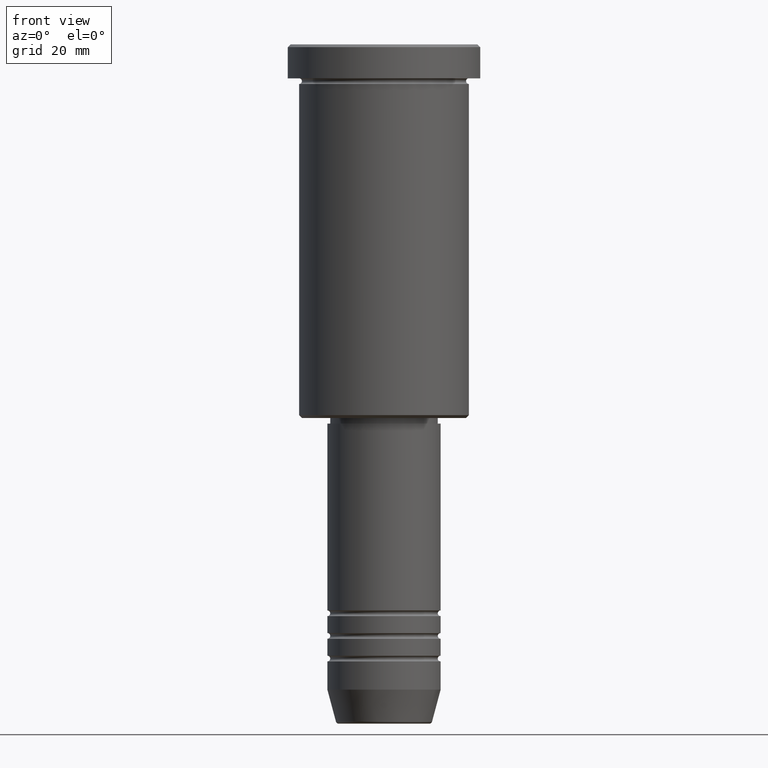
[diagram: clean part render]
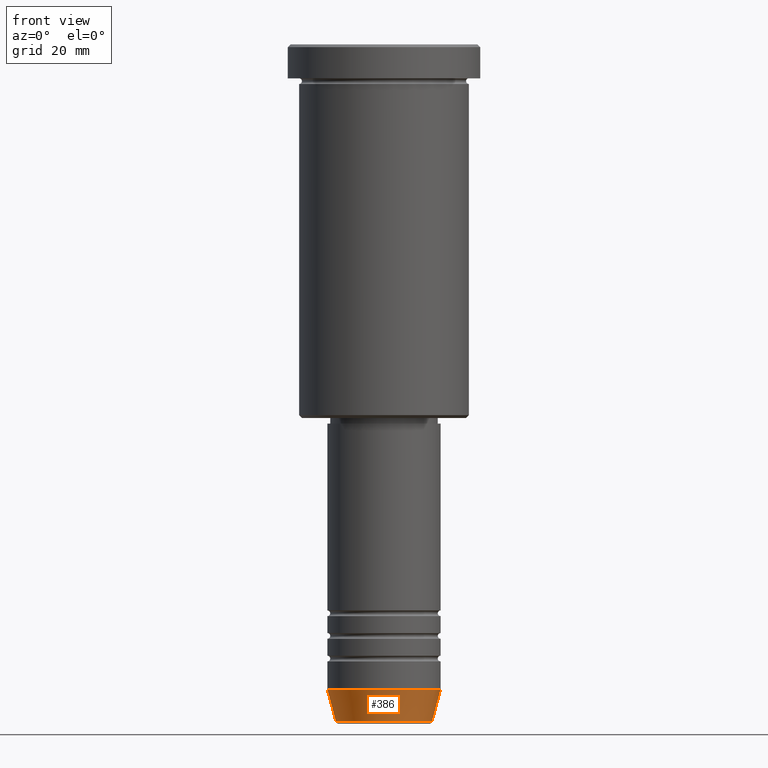
[diagram: same view with one face highlighted and labeled with its STEP entity id]
A machine part, front view. The second image highlights one B-rep face of the part: STEP entity #386.
In plain terms, the highlighted conical surface has half-angle 15 deg.
Its self-contained STEP definition (entity closure, byte-faithful):
#25 = CARTESIAN_POINT ( 'NONE',  ( 10.00000000000000178, 0.000000000000000000, -113.9999999999999858 ) ) ;
#26 = CIRCLE ( 'NONE', #751, 10.00000000000000178 ) ;
#50 = VERTEX_POINT ( 'NONE', #158 ) ;
#103 = EDGE_CURVE ( 'NONE', #493, #299, #26, .T. ) ;
#109 = CARTESIAN_POINT ( 'NONE',  ( 0.000000000000000000, 0.000000000000000000, -113.9999999999999858 ) ) ;
#145 = CIRCLE ( 'NONE', #1101, 8.491604264568312743 ) ;
#158 = CARTESIAN_POINT ( 'NONE',  ( -8.491604264568312743, 1.132284198685156781E-15, -119.6294095225512564 ) ) ;
#169 = EDGE_CURVE ( 'NONE', #50, #493, #1059, .T. ) ;
#233 = ORIENTED_EDGE ( 'NONE', *, *, #637, .T. ) ;
#245 = DIRECTION ( 'NONE',  ( -0.2588190451025214056, 3.169619151431772953E-17, 0.9659258262890680902 ) ) ;
#290 = CARTESIAN_POINT ( 'NONE',  ( 8.491604264568312743, 0.000000000000000000, -119.6294095225512564 ) ) ;
#299 = VERTEX_POINT ( 'NONE', #646 ) ;
#332 = ORIENTED_EDGE ( 'NONE', *, *, #169, .F. ) ;
#361 = DIRECTION ( 'NONE',  ( -0.000000000000000000, -0.000000000000000000, 1.000000000000000000 ) ) ;
#386 = ADVANCED_FACE ( 'NONE', ( #1066 ), #753, .T. ) ;
#480 = DIRECTION ( 'NONE',  ( -0.000000000000000000, -0.000000000000000000, 1.000000000000000000 ) ) ;
#482 = DIRECTION ( 'NONE',  ( 0.2588190451025214056, 0.000000000000000000, 0.9659258262890680902 ) ) ;
#493 = VERTEX_POINT ( 'NONE', #1043 ) ;
#506 = VERTEX_POINT ( 'NONE', #290 ) ;
#519 = CARTESIAN_POINT ( 'NONE',  ( -10.00000000000000178, 1.224646799147353454E-15, -113.9999999999999858 ) ) ;
#533 = VECTOR ( 'NONE', #482, 1000.000000000000000 ) ;
#578 = ORIENTED_EDGE ( 'NONE', *, *, #880, .T. ) ;
#637 = EDGE_CURVE ( 'NONE', #50, #506, #145, .T. ) ;
#641 = AXIS2_PLACEMENT_3D ( 'NONE', #815, #361, #821 ) ;
#646 = CARTESIAN_POINT ( 'NONE',  ( 10.00000000000000178, 0.000000000000000000, -113.9999999999999858 ) ) ;
#746 = ORIENTED_EDGE ( 'NONE', *, *, #103, .F. ) ;
#751 = AXIS2_PLACEMENT_3D ( 'NONE', #109, #480, #834 ) ;
#753 = CONICAL_SURFACE ( 'NONE', #641, 10.00000000000000178, 0.2617993877991501295 ) ;
#767 = LINE ( 'NONE', #25, #533 ) ;
#797 = DIRECTION ( 'NONE',  ( 1.000000000000000000, 0.000000000000000000, 0.000000000000000000 ) ) ;
#815 = CARTESIAN_POINT ( 'NONE',  ( 0.000000000000000000, 0.000000000000000000, -113.9999999999999858 ) ) ;
#821 = DIRECTION ( 'NONE',  ( 1.000000000000000000, 0.000000000000000000, 0.000000000000000000 ) ) ;
#834 = DIRECTION ( 'NONE',  ( 1.000000000000000000, 0.000000000000000000, 0.000000000000000000 ) ) ;
#880 = EDGE_CURVE ( 'NONE', #506, #299, #767, .T. ) ;
#884 = VECTOR ( 'NONE', #245, 1000.000000000000000 ) ;
#892 = DIRECTION ( 'NONE',  ( -0.000000000000000000, -0.000000000000000000, 1.000000000000000000 ) ) ;
#1043 = CARTESIAN_POINT ( 'NONE',  ( -10.00000000000000178, 1.224646799147353454E-15, -113.9999999999999858 ) ) ;
#1053 = EDGE_LOOP ( 'NONE', ( #332, #233, #578, #746 ) ) ;
#1059 = LINE ( 'NONE', #519, #884 ) ;
#1066 = FACE_OUTER_BOUND ( 'NONE', #1053, .T. ) ;
#1075 = CARTESIAN_POINT ( 'NONE',  ( 0.000000000000000000, 0.000000000000000000, -119.6294095225512564 ) ) ;
#1101 = AXIS2_PLACEMENT_3D ( 'NONE', #1075, #892, #797 ) ;